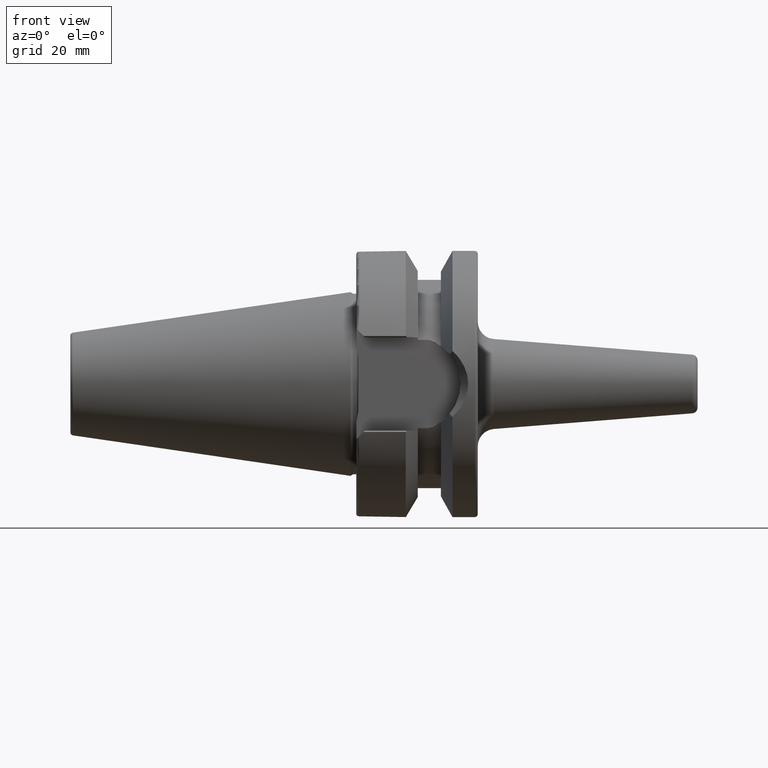
[diagram: clean part render]
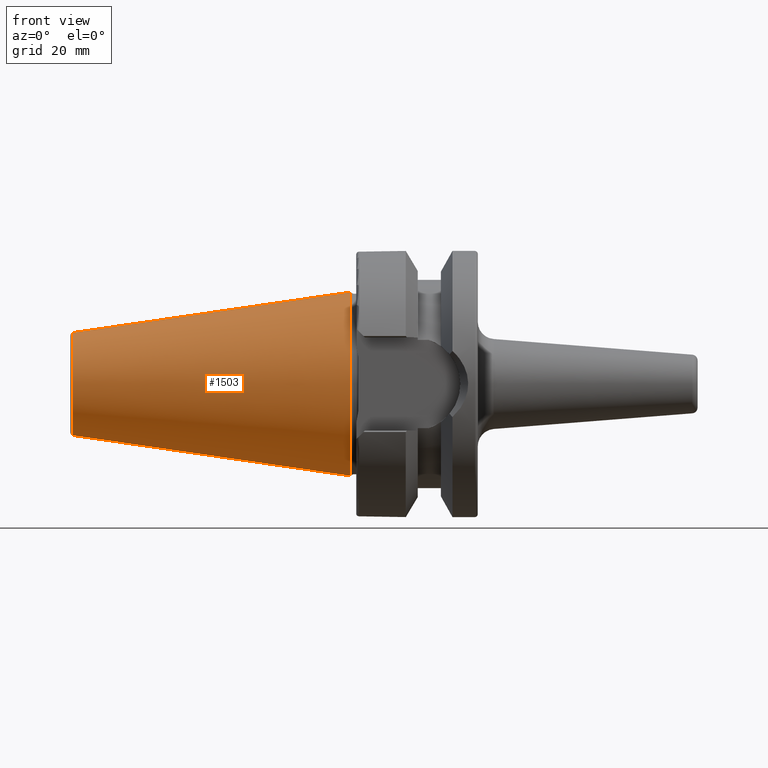
[diagram: same view with one face highlighted and labeled with its STEP entity id]
A machine part, front view. The second image highlights one B-rep face of the part: STEP entity #1503.
In plain terms, the highlighted conical surface has half-angle 8.297 deg.
Its self-contained STEP definition (entity closure, byte-faithful):
#20=CARTESIAN_POINT('',(1.136868377216E-13,0.E0,0.E0));
#21=DIRECTION('',(1.E0,0.E0,0.E0));
#22=DIRECTION('',(0.E0,0.E0,1.E0));
#23=AXIS2_PLACEMENT_3D('',#20,#21,#22);
#25=DIRECTION('',(-9.895329823991E-1,-1.905316735744E-10,1.443068839117E-1));
#26=VECTOR('',#25,4.847959016616E1);
#27=CARTESIAN_POINT('',(6.459019985527E-10,9.247014948131E-9,
-1.587499999963E1));
#28=LINE('',#27,#26);
#29=CARTESIAN_POINT('',(-4.797215344196E1,0.E0,0.E0));
#30=DIRECTION('',(-1.E0,0.E0,0.E0));
#31=DIRECTION('',(0.E0,0.E0,-1.E0));
#32=AXIS2_PLACEMENT_3D('',#29,#30,#31);
#34=DIRECTION('',(-9.895329823991E-1,1.905317934727E-10,-1.443068839117E-1));
#35=VECTOR('',#34,4.847959016616E1);
#36=CARTESIAN_POINT('',(6.459019985527E-10,-9.247017646415E-9,
1.587499999963E1));
#37=LINE('',#36,#35);
#1224=CARTESIAN_POINT('',(-4.797215344196E1,0.E0,8.879061409433E0));
#1225=CARTESIAN_POINT('',(-4.797215344196E1,0.E0,-8.879061409433E0));
#1226=VERTEX_POINT('',#1224);
#1227=VERTEX_POINT('',#1225);
#1228=CARTESIAN_POINT('',(1.136868377216E-13,0.E0,1.5875E1));
#1229=CARTESIAN_POINT('',(1.136868377216E-13,0.E0,-1.5875E1));
#1230=VERTEX_POINT('',#1228);
#1231=VERTEX_POINT('',#1229);
#1491=CARTESIAN_POINT('',(-2.398607672098E1,0.E0,0.E0));
#1492=DIRECTION('',(1.E0,0.E0,0.E0));
#1493=DIRECTION('',(0.E0,0.E0,1.E0));
#1494=AXIS2_PLACEMENT_3D('',#1491,#1492,#1493);
#1495=CONICAL_SURFACE('',#1494,1.237703070472E1,8.29714444E0);
#1496=ORIENTED_EDGE('',*,*,#1482,.T.);
#1497=ORIENTED_EDGE('',*,*,#1457,.T.);
#1499=ORIENTED_EDGE('',*,*,#1498,.T.);
#1500=ORIENTED_EDGE('',*,*,#1453,.F.);
#1501=EDGE_LOOP('',(#1496,#1497,#1499,#1500));
#1502=FACE_OUTER_BOUND('',#1501,.F.);
#1503=ADVANCED_FACE('',(#1502),#1495,.T.);
#24=CIRCLE('',#23,1.5875E1);
#33=CIRCLE('',#32,8.879061409433E0);
#1453=EDGE_CURVE('',#1230,#1226,#37,.T.);
#1457=EDGE_CURVE('',#1231,#1227,#28,.T.);
#1482=EDGE_CURVE('',#1230,#1231,#24,.T.);
#1498=EDGE_CURVE('',#1227,#1226,#33,.T.);